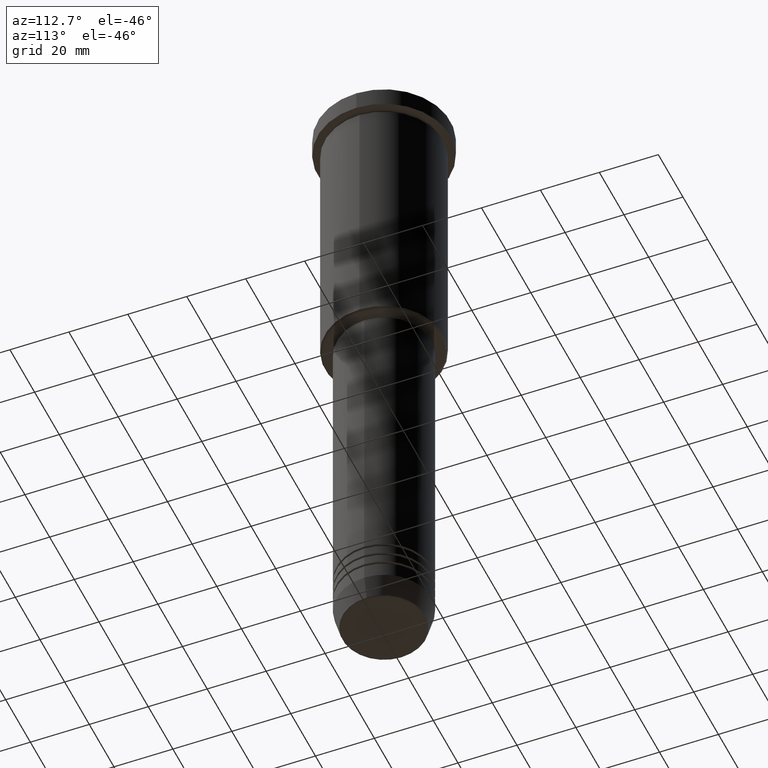
[diagram: clean part render]
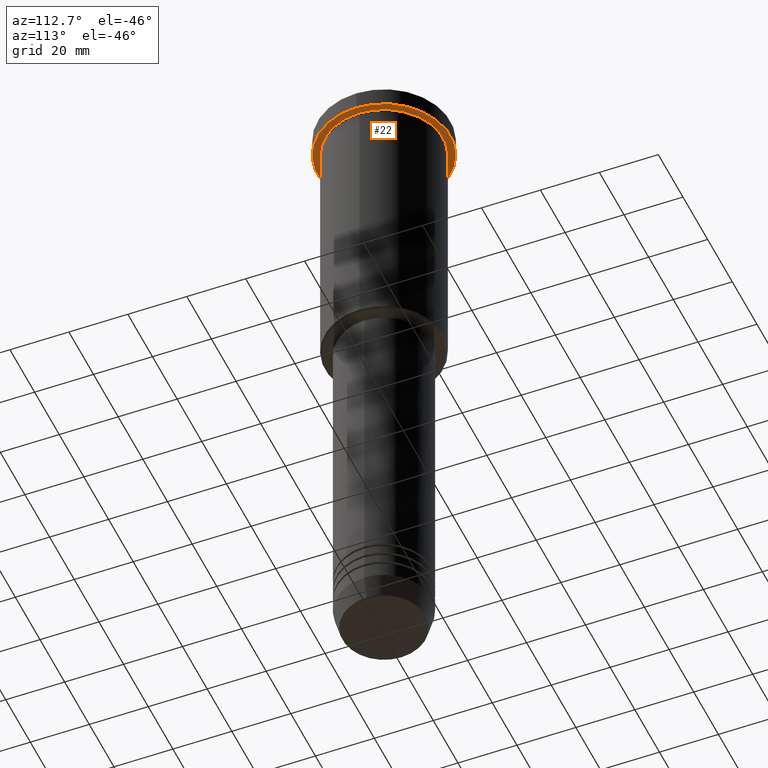
[diagram: same view with one face highlighted and labeled with its STEP entity id]
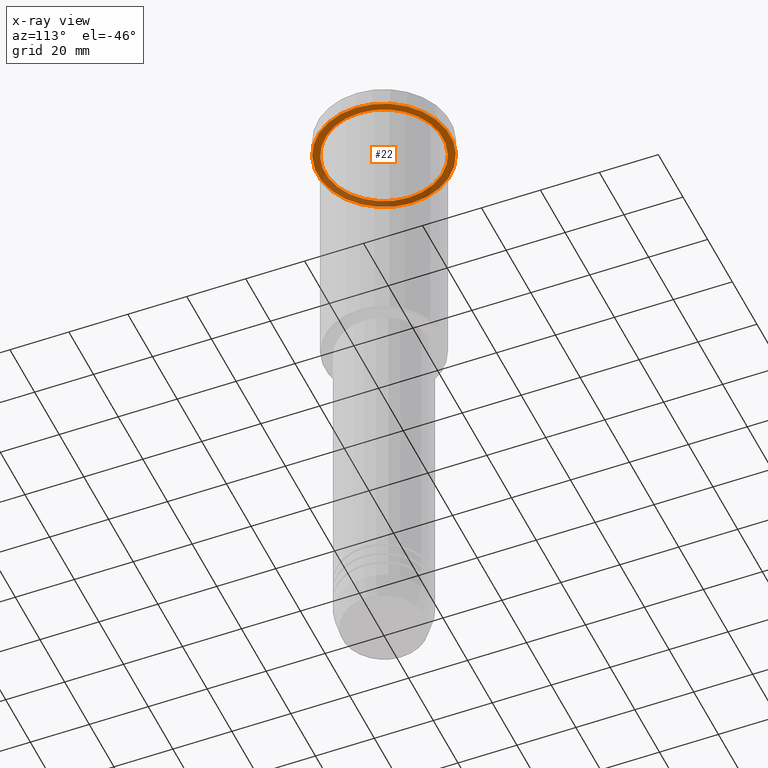
[diagram: x-ray of the same camera — body ghosted, the highlighted face saturated]
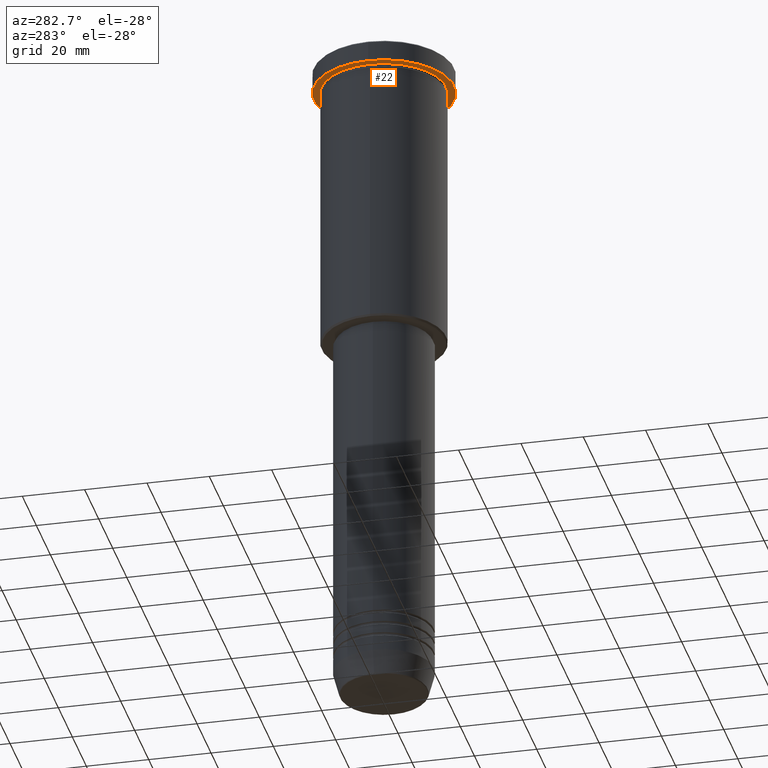
[diagram: same view with one face highlighted and labeled with its STEP entity id]
A machine part, auxiliary view. The second image highlights one B-rep face of the part: STEP entity #22.
The next image is the same camera in x-ray: the body ghosted, the highlighted face saturated — about 36% of this face is hidden behind the body in this view.
A second angle (auxiliary view) of the same face is appended — the face is thin or edge-on in the first view.
In plain terms, the highlighted planar face has unit normal (0, 0, -1).
Its self-contained STEP definition (entity closure, byte-faithful):
#22 = ADVANCED_FACE ( 'NONE', ( #382, #665 ), #593, .T. ) ;
#37 = DIRECTION ( 'NONE',  ( -1.000000000000000000, 0.000000000000000000, 0.000000000000000000 ) ) ;
#48 = DIRECTION ( 'NONE',  ( 1.000000000000000000, 0.000000000000000000, 0.000000000000000000 ) ) ;
#60 = EDGE_CURVE ( 'NONE', #147, #714, #367, .T. ) ;
#119 = EDGE_CURVE ( 'NONE', #1008, #837, #178, .T. ) ;
#127 = ORIENTED_EDGE ( 'NONE', *, *, #384, .T. ) ;
#147 = VERTEX_POINT ( 'NONE', #513 ) ;
#178 = CIRCLE ( 'NONE', #196, 20.00000000000000000 ) ;
#196 = AXIS2_PLACEMENT_3D ( 'NONE', #1153, #1039, #228 ) ;
#225 = CARTESIAN_POINT ( 'NONE',  ( 20.00000000000000000, 2.449293598294706513E-15, -6.999999999999995559 ) ) ;
#228 = DIRECTION ( 'NONE',  ( -1.000000000000000000, 0.000000000000000000, 0.000000000000000000 ) ) ;
#242 = ORIENTED_EDGE ( 'NONE', *, *, #60, .F. ) ;
#301 = AXIS2_PLACEMENT_3D ( 'NONE', #479, #1113, #37 ) ;
#312 = DIRECTION ( 'NONE',  ( -0.000000000000000000, -0.000000000000000000, 1.000000000000000000 ) ) ;
#314 = ORIENTED_EDGE ( 'NONE', *, *, #624, .F. ) ;
#367 = CIRCLE ( 'NONE', #723, 22.50000000000000000 ) ;
#382 = FACE_BOUND ( 'NONE', #580, .T. ) ;
#384 = EDGE_CURVE ( 'NONE', #837, #1008, #675, .T. ) ;
#451 = ORIENTED_EDGE ( 'NONE', *, *, #119, .T. ) ;
#479 = CARTESIAN_POINT ( 'NONE',  ( 0.000000000000000000, 0.000000000000000000, -6.999999999999995559 ) ) ;
#513 = CARTESIAN_POINT ( 'NONE',  ( -22.50000000000000000, 2.755455298081544778E-15, -6.999999999999995559 ) ) ;
#580 = EDGE_LOOP ( 'NONE', ( #451, #127 ) ) ;
#592 = AXIS2_PLACEMENT_3D ( 'NONE', #870, #312, #48 ) ;
#593 = PLANE ( 'NONE',  #718 ) ;
#603 = DIRECTION ( 'NONE',  ( 1.000000000000000000, 0.000000000000000000, 0.000000000000000000 ) ) ;
#624 = EDGE_CURVE ( 'NONE', #714, #147, #663, .T. ) ;
#663 = CIRCLE ( 'NONE', #592, 22.50000000000000000 ) ;
#665 = FACE_OUTER_BOUND ( 'NONE', #769, .T. ) ;
#675 = CIRCLE ( 'NONE', #301, 20.00000000000000000 ) ;
#714 = VERTEX_POINT ( 'NONE', #1173 ) ;
#718 = AXIS2_PLACEMENT_3D ( 'NONE', #749, #946, #1104 ) ;
#723 = AXIS2_PLACEMENT_3D ( 'NONE', #1108, #883, #603 ) ;
#749 = CARTESIAN_POINT ( 'NONE',  ( 0.000000000000000000, 22.50000000000000000, -6.999999999999995559 ) ) ;
#769 = EDGE_LOOP ( 'NONE', ( #314, #242 ) ) ;
#837 = VERTEX_POINT ( 'NONE', #225 ) ;
#870 = CARTESIAN_POINT ( 'NONE',  ( 0.000000000000000000, 0.000000000000000000, -6.999999999999995559 ) ) ;
#883 = DIRECTION ( 'NONE',  ( -0.000000000000000000, -0.000000000000000000, 1.000000000000000000 ) ) ;
#946 = DIRECTION ( 'NONE',  ( 0.000000000000000000, 0.000000000000000000, -1.000000000000000000 ) ) ;
#1008 = VERTEX_POINT ( 'NONE', #1139 ) ;
#1039 = DIRECTION ( 'NONE',  ( -0.000000000000000000, -0.000000000000000000, 1.000000000000000000 ) ) ;
#1104 = DIRECTION ( 'NONE',  ( -1.000000000000000000, 0.000000000000000000, -0.000000000000000000 ) ) ;
#1108 = CARTESIAN_POINT ( 'NONE',  ( 0.000000000000000000, 0.000000000000000000, -6.999999999999995559 ) ) ;
#1113 = DIRECTION ( 'NONE',  ( -0.000000000000000000, -0.000000000000000000, 1.000000000000000000 ) ) ;
#1139 = CARTESIAN_POINT ( 'NONE',  ( -20.00000000000000000, 0.000000000000000000, -6.999999999999995559 ) ) ;
#1153 = CARTESIAN_POINT ( 'NONE',  ( 0.000000000000000000, 0.000000000000000000, -6.999999999999995559 ) ) ;
#1173 = CARTESIAN_POINT ( 'NONE',  ( 22.50000000000000000, 0.000000000000000000, -6.999999999999995559 ) ) ;